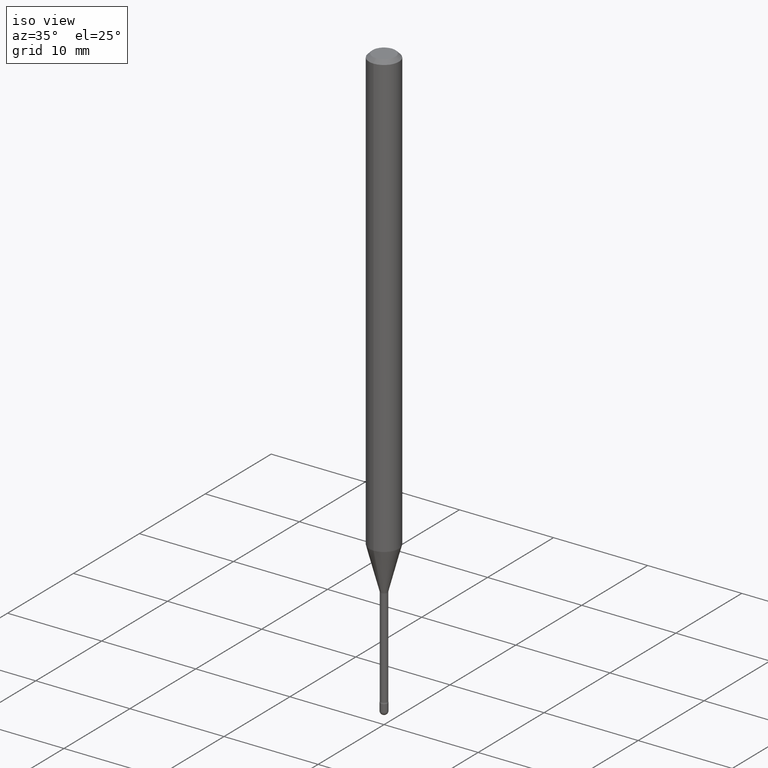
[diagram: clean part render]
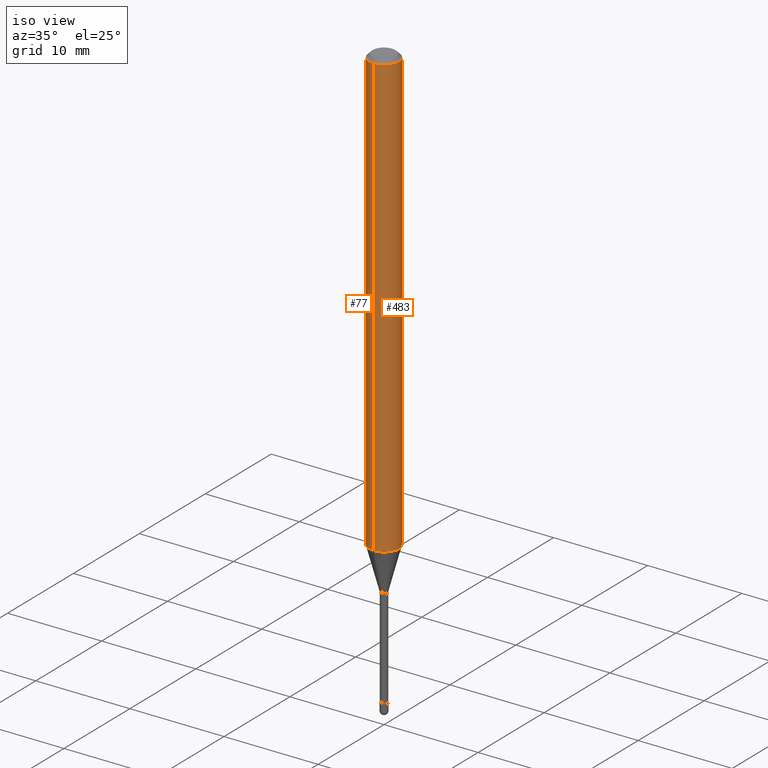
[diagram: same view with one multi-face feature highlighted, each face labeled with its STEP entity id]
A machine part, iso view. The highlighted faces form ONE feature: a constant-radius fillet chain: 2 tangent blend faces with common blend radius 1.5875 mm. The faces share edges in the B-rep.
Their STEP definitions:
[1] entity #483 (Cylinder):
#14 = LINE ( 'NONE', #17, #166 ) ;
#15 = DIRECTION ( 'NONE',  ( -6.982962677686265922E-15, -1.000000000000000000, 4.370956789862821150E-15 ) ) ;
#17 = CARTESIAN_POINT ( 'NONE',  ( -4.364351673553916201E-16, -0.06250000000000000000, 6.962908121755465107E-16 ) ) ;
#32 = CARTESIAN_POINT ( 'NONE',  ( -1.169113584055446105E-44, 1.669184350826100908E-30, 4.780733988912460139E-16 ) ) ;
#36 = CYLINDRICAL_SURFACE ( 'NONE', #228, 0.06250000000000000000 ) ;
#48 = AXIS2_PLACEMENT_3D ( 'NONE', #435, #189, #15 ) ;
#62 = LINE ( 'NONE', #233, #521 ) ;
#87 = ORIENTED_EDGE ( 'NONE', *, *, #437, .T. ) ;
#88 = ORIENTED_EDGE ( 'NONE', *, *, #255, .F. ) ;
#115 = EDGE_CURVE ( 'NONE', #511, #301, #553, .T. ) ;
#128 = DIRECTION ( 'NONE',  ( -2.445470709946298928E-29, 3.491478612548805977E-15, 1.000000000000000000 ) ) ;
#145 = VERTEX_POINT ( 'NONE', #257 ) ;
#147 = DIRECTION ( 'NONE',  ( -6.982962677686265922E-15, -1.000000000000000000, 3.483106191921935554E-15 ) ) ;
#149 = CARTESIAN_POINT ( 'NONE',  ( 4.440892098501077785E-16, 0.06249999999999351213, -1.856048163777072935 ) ) ;
#166 = VECTOR ( 'NONE', #404, 39.37007874015748143 ) ;
#189 = DIRECTION ( 'NONE',  ( -2.445470709946298928E-29, 3.491478612548805977E-15, 1.000000000000000000 ) ) ;
#191 = CARTESIAN_POINT ( 'NONE',  ( 4.440892098501082715E-16, 0.06249999999999995143, -0.01500000000000030129 ) ) ;
#205 = DIRECTION ( 'NONE',  ( -6.982962677686265922E-15, -1.000000000000000000, 3.491478612548807160E-15 ) ) ;
#215 = ORIENTED_EDGE ( 'NONE', *, *, #115, .F. ) ;
#222 = ORIENTED_EDGE ( 'NONE', *, *, #546, .T. ) ;
#228 = AXIS2_PLACEMENT_3D ( 'NONE', #32, #128, #205 ) ;
#233 = CARTESIAN_POINT ( 'NONE',  ( 4.440892098500625669E-16, 0.06250000000000000000, 2.598559856069456650E-16 ) ) ;
#240 = DIRECTION ( 'NONE',  ( -2.445470709946298928E-29, 3.491478612548805977E-15, 1.000000000000000000 ) ) ;
#255 = EDGE_CURVE ( 'NONE', #145, #511, #14, .T. ) ;
#257 = CARTESIAN_POINT ( 'NONE',  ( -4.364351673553463592E-16, -0.06250000000000649480, -1.856048163777072491 ) ) ;
#289 = CIRCLE ( 'NONE', #48, 0.06250000000000000000 ) ;
#294 = AXIS2_PLACEMENT_3D ( 'NONE', #310, #485, #147 ) ;
#301 = VERTEX_POINT ( 'NONE', #191 ) ;
#310 = CARTESIAN_POINT ( 'NONE',  ( 3.668206064919468132E-31, -5.237217918823237660E-17, -0.01500000000000008271 ) ) ;
#374 = CARTESIAN_POINT ( 'NONE',  ( -4.364351673553912750E-16, -0.06250000000000005551, -0.01499999999999986587 ) ) ;
#403 = VERTEX_POINT ( 'NONE', #149 ) ;
#404 = DIRECTION ( 'NONE',  ( -2.445470709946298928E-29, 3.491478612548805977E-15, 1.000000000000000000 ) ) ;
#421 = FACE_OUTER_BOUND ( 'NONE', #486, .T. ) ;
#435 = CARTESIAN_POINT ( 'NONE',  ( 4.538911420766442433E-29, -6.480352467688133493E-15, -1.856048163777072713 ) ) ;
#437 = EDGE_CURVE ( 'NONE', #403, #301, #62, .T. ) ;
#483 = ADVANCED_FACE ( 'NONE', ( #421 ), #36, .T. ) ;
#485 = DIRECTION ( 'NONE',  ( -2.445470709946298928E-29, 3.491478612548805977E-15, 1.000000000000000000 ) ) ;
#486 = EDGE_LOOP ( 'NONE', ( #222, #87, #215, #88 ) ) ;
#511 = VERTEX_POINT ( 'NONE', #374 ) ;
#521 = VECTOR ( 'NONE', #240, 39.37007874015748143 ) ;
#546 = EDGE_CURVE ( 'NONE', #145, #403, #289, .T. ) ;
#553 = CIRCLE ( 'NONE', #294, 0.06250000000000000000 ) ;
[2] entity #77 (Cylinder):
#11 = CARTESIAN_POINT ( 'NONE',  ( 3.668206064919468132E-31, -5.237217918823237660E-17, -0.01500000000000008271 ) ) ;
#14 = LINE ( 'NONE', #17, #166 ) ;
#16 = DIRECTION ( 'NONE',  ( -2.445470709946298928E-29, 3.491478612548805977E-15, 1.000000000000000000 ) ) ;
#17 = CARTESIAN_POINT ( 'NONE',  ( -4.364351673553916201E-16, -0.06250000000000000000, 6.962908121755465107E-16 ) ) ;
#19 = EDGE_CURVE ( 'NONE', #301, #511, #351, .T. ) ;
#20 = CARTESIAN_POINT ( 'NONE',  ( 4.538911420766442433E-29, -6.480352467688133493E-15, -1.856048163777072713 ) ) ;
#62 = LINE ( 'NONE', #233, #521 ) ;
#77 = ADVANCED_FACE ( 'NONE', ( #114 ), #400, .T. ) ;
#111 = DIRECTION ( 'NONE',  ( -2.445470709946298928E-29, 3.491478612548805977E-15, 1.000000000000000000 ) ) ;
#113 = EDGE_LOOP ( 'NONE', ( #195, #371, #329, #142 ) ) ;
#114 = FACE_OUTER_BOUND ( 'NONE', #113, .T. ) ;
#142 = ORIENTED_EDGE ( 'NONE', *, *, #19, .F. ) ;
#145 = VERTEX_POINT ( 'NONE', #257 ) ;
#149 = CARTESIAN_POINT ( 'NONE',  ( 4.440892098501077785E-16, 0.06249999999999351213, -1.856048163777072935 ) ) ;
#166 = VECTOR ( 'NONE', #404, 39.37007874015748143 ) ;
#191 = CARTESIAN_POINT ( 'NONE',  ( 4.440892098501082715E-16, 0.06249999999999995143, -0.01500000000000030129 ) ) ;
#193 = DIRECTION ( 'NONE',  ( -6.982962677686265922E-15, -1.000000000000000000, 4.370956789862821150E-15 ) ) ;
#195 = ORIENTED_EDGE ( 'NONE', *, *, #437, .F. ) ;
#229 = DIRECTION ( 'NONE',  ( -6.982962677686265922E-15, -1.000000000000000000, 3.483106191921935554E-15 ) ) ;
#233 = CARTESIAN_POINT ( 'NONE',  ( 4.440892098500625669E-16, 0.06250000000000000000, 2.598559856069456650E-16 ) ) ;
#240 = DIRECTION ( 'NONE',  ( -2.445470709946298928E-29, 3.491478612548805977E-15, 1.000000000000000000 ) ) ;
#244 = AXIS2_PLACEMENT_3D ( 'NONE', #354, #360, #453 ) ;
#255 = EDGE_CURVE ( 'NONE', #145, #511, #14, .T. ) ;
#257 = CARTESIAN_POINT ( 'NONE',  ( -4.364351673553463592E-16, -0.06250000000000649480, -1.856048163777072491 ) ) ;
#301 = VERTEX_POINT ( 'NONE', #191 ) ;
#324 = EDGE_CURVE ( 'NONE', #403, #145, #335, .T. ) ;
#329 = ORIENTED_EDGE ( 'NONE', *, *, #255, .T. ) ;
#335 = CIRCLE ( 'NONE', #494, 0.06250000000000000000 ) ;
#351 = CIRCLE ( 'NONE', #363, 0.06250000000000000000 ) ;
#354 = CARTESIAN_POINT ( 'NONE',  ( -1.169113584055446105E-44, 1.669184350826100908E-30, 4.780733988912460139E-16 ) ) ;
#360 = DIRECTION ( 'NONE',  ( -2.445470709946298928E-29, 3.491478612548805977E-15, 1.000000000000000000 ) ) ;
#363 = AXIS2_PLACEMENT_3D ( 'NONE', #11, #16, #229 ) ;
#371 = ORIENTED_EDGE ( 'NONE', *, *, #324, .T. ) ;
#374 = CARTESIAN_POINT ( 'NONE',  ( -4.364351673553912750E-16, -0.06250000000000005551, -0.01499999999999986587 ) ) ;
#400 = CYLINDRICAL_SURFACE ( 'NONE', #244, 0.06250000000000000000 ) ;
#403 = VERTEX_POINT ( 'NONE', #149 ) ;
#404 = DIRECTION ( 'NONE',  ( -2.445470709946298928E-29, 3.491478612548805977E-15, 1.000000000000000000 ) ) ;
#437 = EDGE_CURVE ( 'NONE', #403, #301, #62, .T. ) ;
#453 = DIRECTION ( 'NONE',  ( -6.982962677686265922E-15, -1.000000000000000000, 3.491478612548807160E-15 ) ) ;
#494 = AXIS2_PLACEMENT_3D ( 'NONE', #20, #111, #193 ) ;
#511 = VERTEX_POINT ( 'NONE', #374 ) ;
#521 = VECTOR ( 'NONE', #240, 39.37007874015748143 ) ;